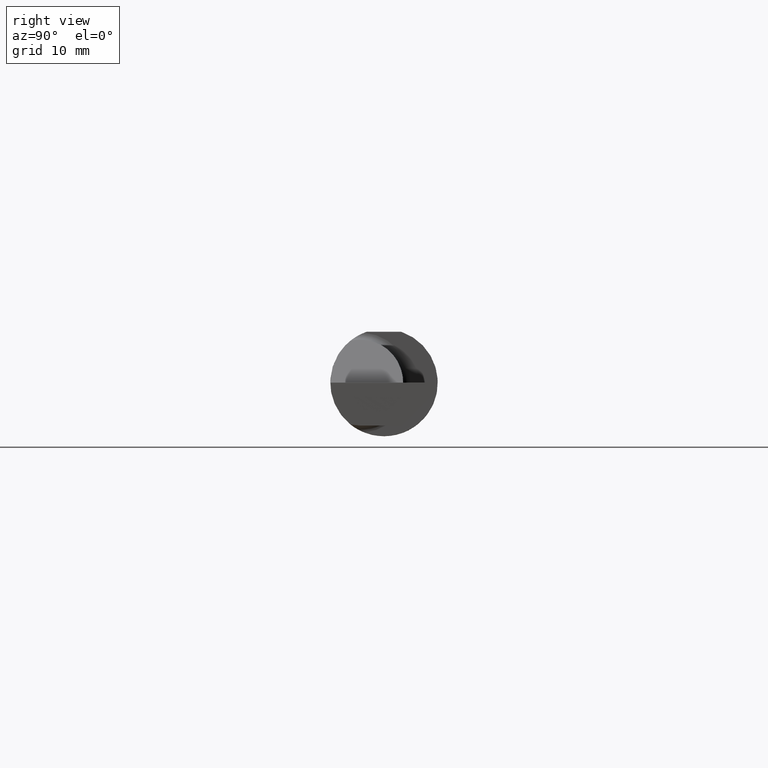
[diagram: clean part render]
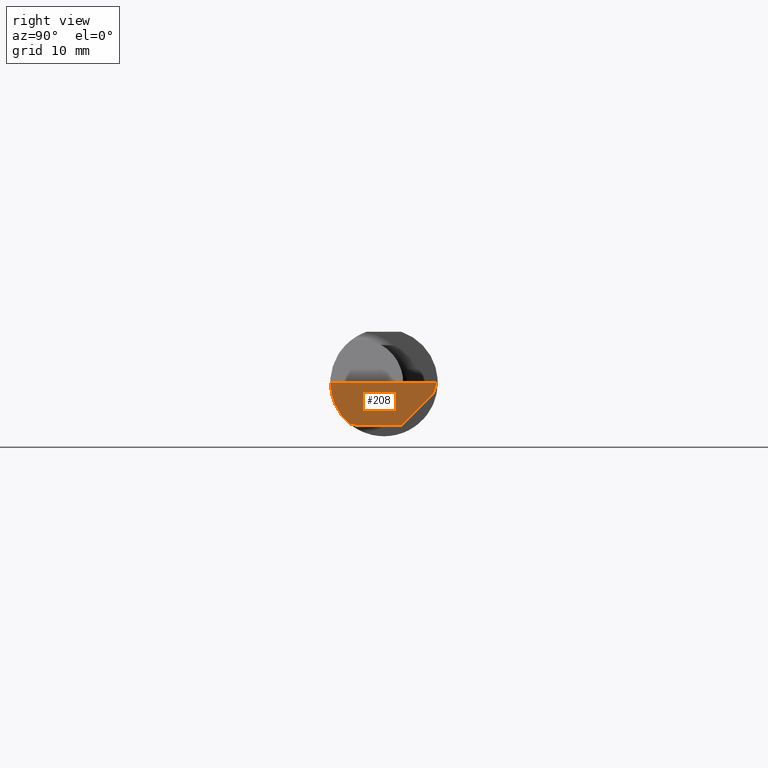
[diagram: same view with one face highlighted and labeled with its STEP entity id]
A machine part, right view. The second image highlights one B-rep face of the part: STEP entity #208.
In plain terms, the highlighted planar face has unit normal (-0.9995, 0.0174, 0.0262).
Its self-contained STEP definition (entity closure, byte-faithful):
#54 = CARTESIAN_POINT ( 'NONE',  ( 2.491393556036329837, -0.08334999999999996578, -0.1499999999999999944 ) ) ;
#71 = CARTESIAN_POINT ( 'NONE',  ( 2.500000000000000000, 0.1846500000000000363, 0.000000000000000000 ) ) ;
#72 = ORIENTED_EDGE ( 'NONE', *, *, #803, .T. ) ;
#87 = EDGE_LOOP ( 'NONE', ( #72, #683, #925, #948, #750, #195 ) ) ;
#89 = LINE ( 'NONE', #399, #411 ) ;
#114 = CARTESIAN_POINT ( 'NONE',  ( 2.490903355898019367, -0.1172600179964007477, -0.1461167706989302817 ) ) ;
#131 = VERTEX_POINT ( 'NONE', #200 ) ;
#150 = CARTESIAN_POINT ( 'NONE',  ( 2.500000000000000000, 0.1846500000000000363, 0.000000000000000000 ) ) ;
#179 = CARTESIAN_POINT ( 'NONE',  ( 2.499908263133603814, 0.1837144758152614021, -0.002879247381999359371 ) ) ;
#195 = ORIENTED_EDGE ( 'NONE', *, *, #867, .F. ) ;
#200 = CARTESIAN_POINT ( 'NONE',  ( 2.498789266617083449, 0.1723030515431495657, -0.03799999999999999212 ) ) ;
#208 = ADVANCED_FACE ( 'NONE', ( #538 ), #939, .F. ) ;
#245 = CARTESIAN_POINT ( 'NONE',  ( 2.491029992219911282, -0.1061291577212409715, -0.1486999626928445506 ) ) ;
#254 = VERTEX_POINT ( 'NONE', #794 ) ;
#282 = EDGE_CURVE ( 'NONE', #729, #565, #89, .T. ) ;
#306 = VERTEX_POINT ( 'NONE', #409 ) ;
#307 = LINE ( 'NONE', #621, #744 ) ;
#322 = CARTESIAN_POINT ( 'NONE',  ( 2.490903355898019367, -0.1172600179964007477, -0.1461167706989302817 ) ) ;
#328 = EDGE_CURVE ( 'NONE', #131, #306, #551, .T. ) ;
#331 = CARTESIAN_POINT ( 'NONE',  ( 2.498695265107655938, 0.1701492753368748778, -0.04015377620627467309 ) ) ;
#342 = DIRECTION ( 'NONE',  ( -0.03084697155452398656, -0.7067702824630919256, -0.7067702824630897052 ) ) ;
#358 = EDGE_CURVE ( 'NONE', #729, #131, #893, .T. ) ;
#399 = CARTESIAN_POINT ( 'NONE',  ( 2.500000000000000000, 0.1846500000000000363, 0.000000000000000000 ) ) ;
#409 = CARTESIAN_POINT ( 'NONE',  ( 2.493901029378150724, 0.06030305154314920951, -0.1499999999999999944 ) ) ;
#411 = VECTOR ( 'NONE', #1042, 39.37007874015748143 ) ;
#510 = VECTOR ( 'NONE', #733, 39.37007874015748854 ) ;
#527 = CARTESIAN_POINT ( 'NONE',  ( 2.493506715846705468, -0.1873499999999999888, 0.000000000000000000 ) ) ;
#538 = FACE_OUTER_BOUND ( 'NONE', #87, .T. ) ;
#551 = LINE ( 'NONE', #331, #932 ) ;
#565 = VERTEX_POINT ( 'NONE', #527 ) ;
#611 = AXIS2_PLACEMENT_3D ( 'NONE', #71, #1027, #628 ) ;
#621 = CARTESIAN_POINT ( 'NONE',  ( 2.494809345111306254, 0.1123404250442412711, -0.1499999999999999944 ) ) ;
#628 = DIRECTION ( 'NONE',  ( 0.02618093305822682959, 0.000000000000000000, 0.9996572206232497981 ) ) ;
#635 = CARTESIAN_POINT ( 'NONE',  ( 2.491194102659540111, -0.09477667630339423055, -0.1499999999999999667 ) ) ;
#678 = CARTESIAN_POINT ( 'NONE',  ( 2.493506715846705468, -0.1873499999999999888, 0.000000000000000000 ) ) ;
#683 = ORIENTED_EDGE ( 'NONE', *, *, #703, .F. ) ;
#689 = VERTEX_POINT ( 'NONE', #54 ) ;
#703 = EDGE_CURVE ( 'NONE', #306, #689, #307, .T. ) ;
#729 = VERTEX_POINT ( 'NONE', #150 ) ;
#733 = DIRECTION ( 'NONE',  ( -0.03028809442608968241, -0.3088752205991470157, -0.9506201814793669991 ) ) ;
#744 = VECTOR ( 'NONE', #941, 39.37007874015748143 ) ;
#750 = ORIENTED_EDGE ( 'NONE', *, *, #282, .T. ) ;
#756 = CARTESIAN_POINT ( 'NONE',  ( 2.491992669264299742, -0.1873499999999999888, -0.05781030015605114619 ) ) ;
#794 = CARTESIAN_POINT ( 'NONE',  ( 2.490903355898019367, -0.1172600179964007477, -0.1461167706989302817 ) ) ;
#803 = EDGE_CURVE ( 'NONE', #254, #689, #1010, .T. ) ;
#867 = EDGE_CURVE ( 'NONE', #254, #565, #960, .T. ) ;
#893 = LINE ( 'NONE', #179, #510 ) ;
#914 = CARTESIAN_POINT ( 'NONE',  ( 2.491063981715931686, -0.1623470442677541759, -0.1099340280425337851 ) ) ;
#925 = ORIENTED_EDGE ( 'NONE', *, *, #328, .F. ) ;
#932 = VECTOR ( 'NONE', #342, 39.37007874015748143 ) ;
#939 = PLANE ( 'NONE',  #611 ) ;
#941 = DIRECTION ( 'NONE',  ( -0.01745240643727703073, -0.9998476951563912696, 0.000000000000000000 ) ) ;
#948 = ORIENTED_EDGE ( 'NONE', *, *, #358, .F. ) ;
#956 = CARTESIAN_POINT ( 'NONE',  ( 2.491393556036329837, -0.08334999999999996578, -0.1499999999999999944 ) ) ;
#960 =( BOUNDED_CURVE ( )  B_SPLINE_CURVE ( 3, ( #114, #914, #756, #678 ),
 .UNSPECIFIED., .F., .T. ) 
 B_SPLINE_CURVE_WITH_KNOTS ( ( 4, 4 ),
 ( 0.08839520912052888091, 0.9829226100289757406 ),
 .UNSPECIFIED. ) 
 CURVE ( )  GEOMETRIC_REPRESENTATION_ITEM ( )  RATIONAL_B_SPLINE_CURVE ( ( 1.000000000000000000, 0.9344226172588803170, 0.9344226172588803170, 1.000000000000000000 ) ) 
 REPRESENTATION_ITEM ( '' )  );
#1010 =( BOUNDED_CURVE ( )  B_SPLINE_CURVE ( 3, ( #322, #245, #635, #956 ),
 .UNSPECIFIED., .F., .T. ) 
 B_SPLINE_CURVE_WITH_KNOTS ( ( 4, 4 ),
 ( 0.3598356817164759525, 0.5878737167659207064 ),
 .UNSPECIFIED. ) 
 CURVE ( )  GEOMETRIC_REPRESENTATION_ITEM ( )  RATIONAL_B_SPLINE_CURVE ( ( 1.000000000000000000, 0.9956712472009929815, 0.9956712472009929815, 1.000000000000000000 ) ) 
 REPRESENTATION_ITEM ( '' )  );
#1027 = DIRECTION ( 'NONE',  ( -0.9995050723230146650, 0.01744642593347454917, 0.02617694830787320806 ) ) ;
#1042 = DIRECTION ( 'NONE',  ( -0.01745240643727703073, -0.9998476951563912696, 0.000000000000000000 ) ) ;